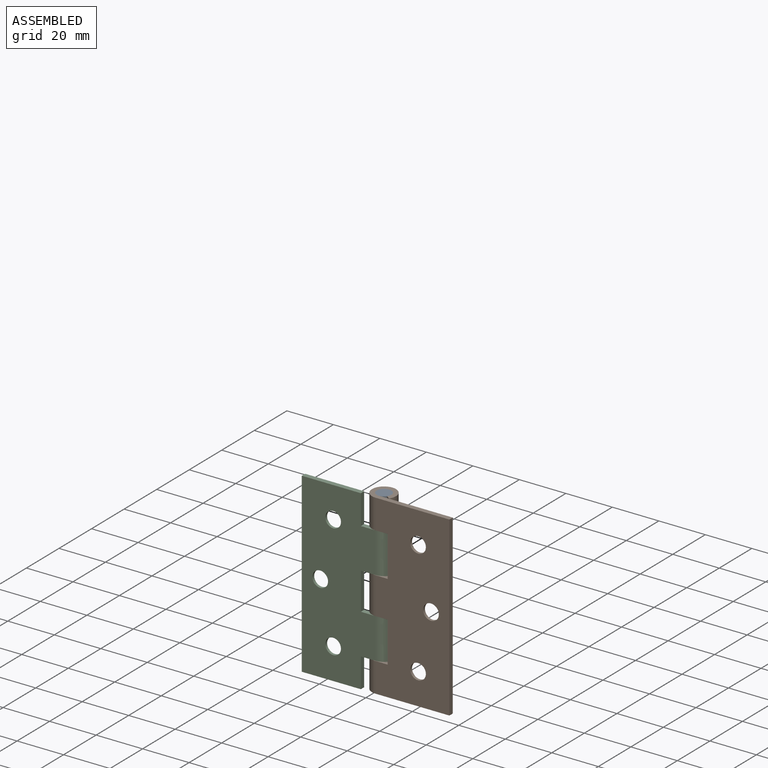
[diagram: assembled view]
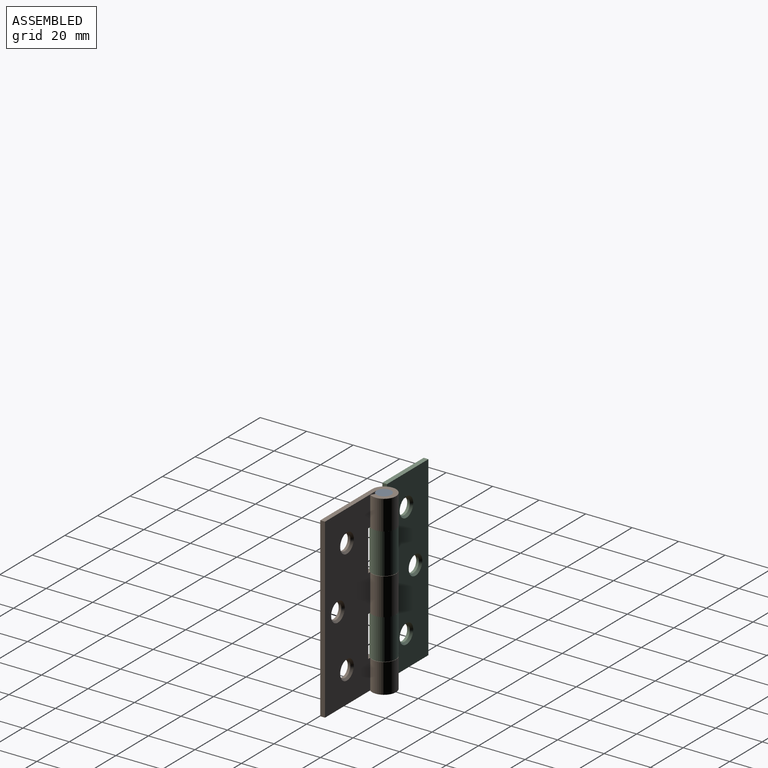
[diagram: assembled view, second angle]
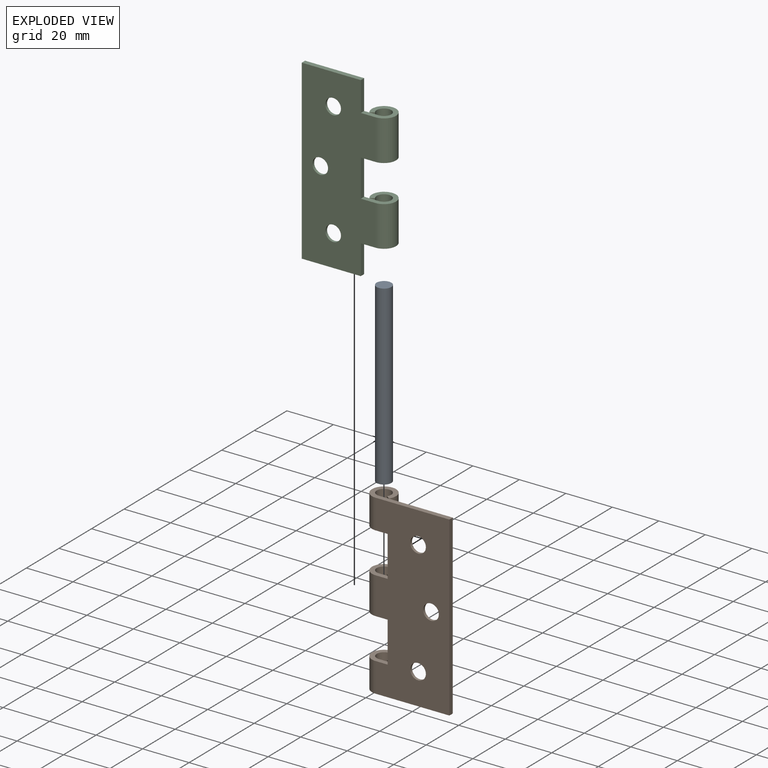
[diagram: exploded view]
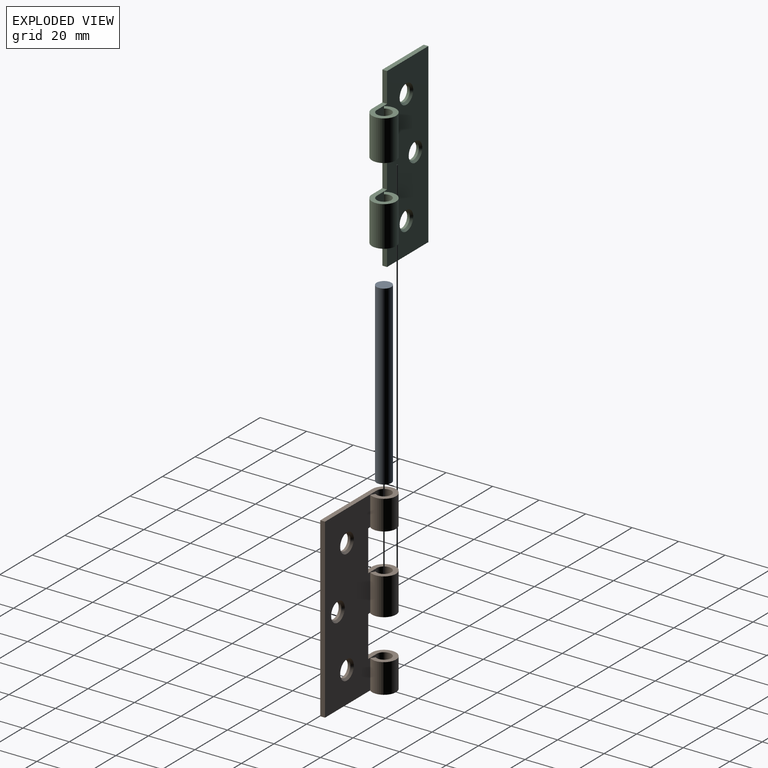
[diagram: exploded view, second angle]
ASSEMBLY  parts=3 mates=2
PART A: 3 faces, bbox 6.4x6.4x76.2 mm
  f0: plane 6.35x6.35mm, normal (0,0,-1), area 31.7mm2, adj f1
  f1: cylinder r=3.17mm len=76.2mm, axis (0,0,1), area 1520.1mm2, adj f0,f2
  f2: plane 6.35x6.35mm, normal (0,0,1), area 31.7mm2, adj f1
PART B: 26 faces, bbox 36.9x10.3x76.2 mm
  f0: cylinder r=3.14mm len=12.7mm, axis (0,0,-1), area 212.1mm2, adj f3,f10,f12,f17
  f1: cylinder r=3.14mm len=15.88mm, axis (0,0,-1), area 265.1mm2, adj f4,f10,f16,f19
  f2: cylinder r=3.14mm len=12.7mm, axis (0,0,-1), area 212.1mm2, adj f5,f10,f13,f14
  f3: plane 12.7x1.66mm, normal (-0.57,-0.82,0), area 25.8mm2, adj f0,f6,f12,f17
  f4: plane 15.88x1.66mm, normal (-0.57,-0.82,0), area 32.3mm2, adj f1,f7,f16,f19
  f5: plane 12.7x1.66mm, normal (-0.57,-0.82,0), area 25.8mm2, adj f2,f8,f13,f14
  f6: cylinder r=5.17mm len=12.7mm, axis (0,0,-1), area 349.4mm2, adj f3,f9,f12,f17
  f7: cylinder r=5.17mm len=15.88mm, axis (0,0,-1), area 436.8mm2, adj f4,f9,f16,f19
  f8: cylinder r=5.17mm len=12.7mm, axis (0,0,-1), area 349.4mm2, adj f5,f9,f13,f14
  f9: plane 76.2x31.75mm, normal (0,-1,0), area 2132.1mm2, adj f6,f7,f8,f11,f12,f13,f14,f15
  f10: plane 76.2x31.75mm, normal (0,1,0), area 2075.3mm2, adj f0,f1,f2,f11,f12,f13,f14,f15
  f11: plane 76.2x2.03mm, normal (1,0,0), area 154.8mm2, adj f9,f10,f12,f13
  f12: plane 36.92x10.34mm, normal (0,0,1), area 109.4mm2, adj f0,f3,f6,f9,f10,f11
  f13: plane 36.92x10.34mm, normal (0,0,-1), area 109.4mm2, adj f2,f5,f8,f9,f10,f11
  f14: plane 10.34x10.34mm, normal (0,0,1), area 55.4mm2, adj f2,f5,f8,f9,f10,f15
  f15: plane 17.46x2.03mm, normal (-1,0,0), area 35.5mm2, adj f9,f10,f14,f16
  f16: plane 10.34x10.34mm, normal (0,0,-1), area 55.4mm2, adj f1,f4,f7,f9,f10,f15
  f17: plane 10.34x10.34mm, normal (0,0,-1), area 55.4mm2, adj f0,f3,f6,f9,f10,f18
  f18: plane 17.46x2.03mm, normal (-1,0,0), area 35.5mm2, adj f9,f10,f17,f19
  f19: plane 10.34x10.34mm, normal (0,0,1), area 55.4mm2, adj f1,f4,f7,f9,f10,f18
  f20: cylinder r=3.37mm len=6.73mm, axis (0,1,0), area 23.5mm2, adj f9,f21
  f21: cone r=4.17mm half-angle=41deg, axis (0,1,0), area 28.9mm2, adj f10,f20
  f22: cylinder r=3.37mm len=6.73mm, axis (0,1,0), area 23.5mm2, adj f9,f23
  f23: cone r=4.17mm half-angle=41deg, axis (0,1,0), area 28.9mm2, adj f10,f22
  f24: cylinder r=3.37mm len=6.73mm, axis (0,1,0), area 23.5mm2, adj f9,f25
  f25: cone r=4.17mm half-angle=41deg, axis (0,1,0), area 28.9mm2, adj f10,f24
PART C: 24 faces, bbox 36.9x10.3x76.2 mm
  f0: plane 15.98x2.03mm, normal (1,0,0), area 32.5mm2, adj f3,f6,f8,f13
  f1: plane 12.75x2.03mm, normal (1,0,0), area 25.9mm2, adj f6,f8,f10,f14
  f2: plane 11.52x10.34mm, normal (0,0,1), area 57.8mm2, adj f4,f5,f6,f8,f9,f11
  f3: plane 11.52x10.34mm, normal (0,0,-1), area 57.8mm2, adj f0,f4,f5,f6,f8,f9
  f4: plane 17.36x1.66mm, normal (0.57,-0.82,0), area 35.3mm2, adj f2,f3,f5,f9
  f5: cylinder r=5.17mm len=17.36mm, axis (0,0,-1), area 477.7mm2, adj f2,f3,f4,f6
  f6: plane 76.2x31.75mm, normal (0,-1,0), area 2049.2mm2, adj f0,f1,f2,f3,f5,f7,f10,f11
  f7: plane 76.2x2.03mm, normal (-1,0,0), area 154.8mm2, adj f6,f8,f10,f12
  f8: plane 76.2x31.75mm, normal (0,1,0), area 1992.4mm2, adj f0,f1,f2,f3,f7,f9,f10,f11
  f9: cylinder r=3.14mm len=17.36mm, axis (0,0,-1), area 289.9mm2, adj f2,f3,f4,f8
  f10: plane 25.4x2.03mm, normal (0,0,-1), area 51.6mm2, adj f1,f6,f7,f8
  f11: plane 12.75x2.03mm, normal (1,0,0), area 25.9mm2, adj f2,f6,f8,f12
  f12: plane 25.4x2.03mm, normal (0,0,1), area 51.6mm2, adj f6,f7,f8,f11
  f13: plane 11.52x10.34mm, normal (0,0,1), area 57.8mm2, adj f0,f6,f8,f15,f16,f17
  f14: plane 11.52x10.34mm, normal (0,0,-1), area 57.8mm2, adj f1,f6,f8,f15,f16,f17
  f15: plane 17.36x1.66mm, normal (0.57,-0.82,0), area 35.3mm2, adj f13,f14,f16,f17
  f16: cylinder r=5.17mm len=17.36mm, axis (0,0,-1), area 477.7mm2, adj f6,f13,f14,f15
  f17: cylinder r=3.14mm len=17.36mm, axis (0,0,-1), area 289.9mm2, adj f8,f13,f14,f15
  f18: cylinder r=3.37mm len=6.73mm, axis (0,1,0), area 23.5mm2, adj f6,f19
  f19: cone r=4.17mm half-angle=41deg, axis (0,1,0), area 28.9mm2, adj f8,f18
  f20: cylinder r=3.37mm len=6.73mm, axis (0,1,0), area 23.5mm2, adj f6,f21
  f21: cone r=4.17mm half-angle=41deg, axis (0,1,0), area 28.9mm2, adj f8,f20
  f22: cylinder r=3.37mm len=6.73mm, axis (0,1,0), area 23.5mm2, adj f6,f23
  f23: cone r=4.17mm half-angle=41deg, axis (0,1,0), area 28.9mm2, adj f8,f22
PLACE A t=(-17.25,7.26,-73.57)mm
PLACE B t=(-17.25,7.26,-73.57)mm
PLACE C t=(-17.25,7.26,-73.52)mm
MATE fastened B.f0 <-> A.f1  axis (0,0,1) through (-17.25,7.26,-35.47)mm
MATE revolute C.f5 <-> B.f0  axis (0,0,1) through (-17.25,7.26,-81.51)mm
